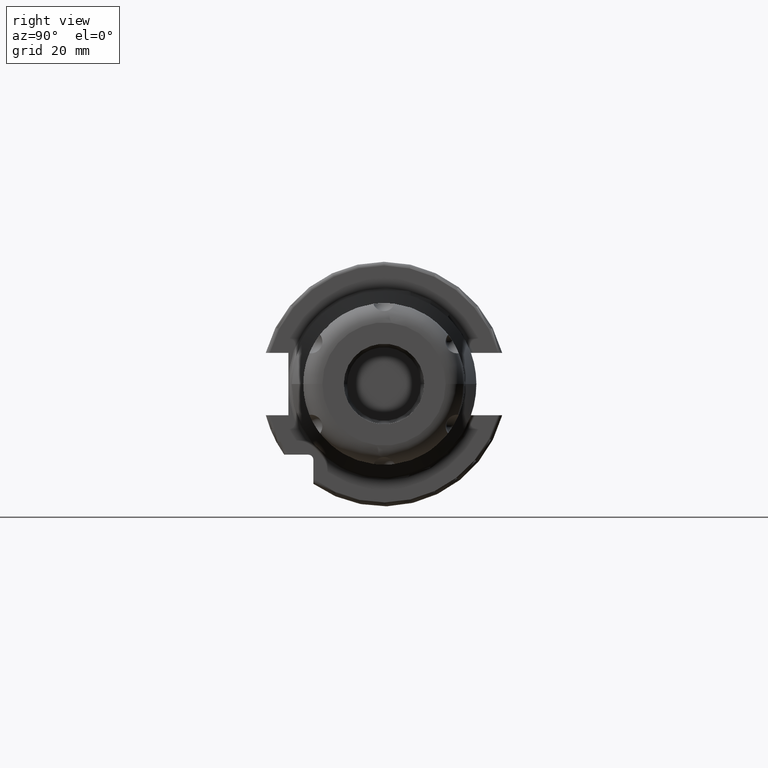
[diagram: clean part render]
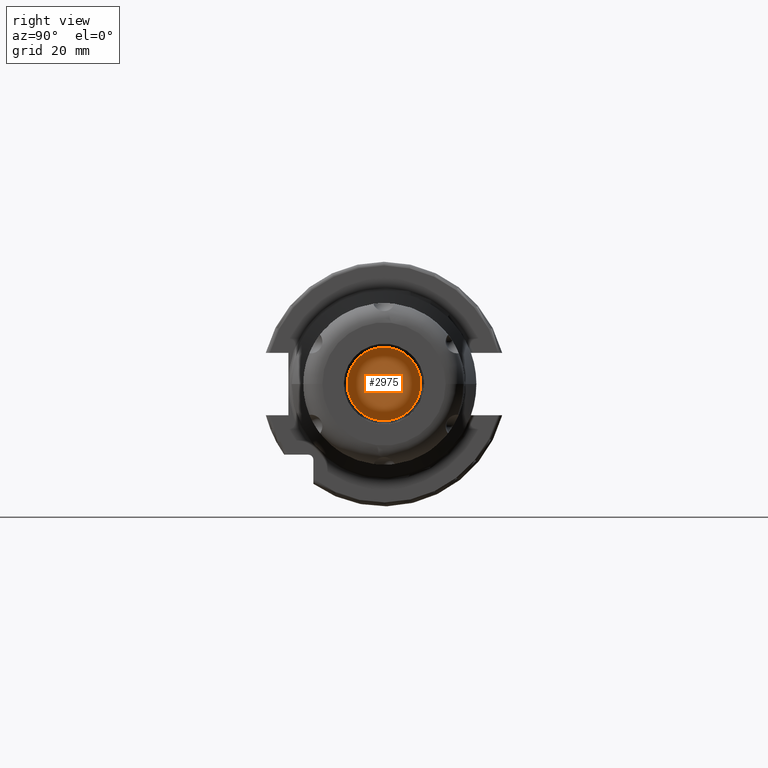
[diagram: same view with one face highlighted and labeled with its STEP entity id]
A machine part, right view. The second image highlights one B-rep face of the part: STEP entity #2975.
In plain terms, the highlighted planar face has unit normal (1, 0, 0).
Its self-contained STEP definition (entity closure, byte-faithful):
#1171=CARTESIAN_POINT('',(6.088E1,0.E0,0.E0));
#1172=DIRECTION('',(-1.E0,0.E0,0.E0));
#1173=DIRECTION('',(0.E0,1.E0,0.E0));
#1174=AXIS2_PLACEMENT_3D('',#1171,#1172,#1173);
#1176=CARTESIAN_POINT('',(6.088E1,0.E0,0.E0));
#1177=DIRECTION('',(1.E0,0.E0,0.E0));
#1178=DIRECTION('',(0.E0,1.E0,0.E0));
#1179=AXIS2_PLACEMENT_3D('',#1176,#1177,#1178);
#1648=CARTESIAN_POINT('',(6.088E1,9.56E0,0.E0));
#1650=VERTEX_POINT('',#1648);
#1652=CARTESIAN_POINT('',(6.088E1,-9.56E0,0.E0));
#1654=VERTEX_POINT('',#1652);
#2966=CARTESIAN_POINT('',(6.088E1,0.E0,0.E0));
#2967=DIRECTION('',(1.E0,0.E0,0.E0));
#2968=DIRECTION('',(0.E0,-1.E0,0.E0));
#2969=AXIS2_PLACEMENT_3D('',#2966,#2967,#2968);
#2970=PLANE('',#2969);
#2971=ORIENTED_EDGE('',*,*,#2948,.T.);
#2972=ORIENTED_EDGE('',*,*,#2959,.F.);
#2973=EDGE_LOOP('',(#2971,#2972));
#2974=FACE_OUTER_BOUND('',#2973,.F.);
#2975=ADVANCED_FACE('',(#2974),#2970,.T.);
#1175=CIRCLE('',#1174,9.56E0);
#1180=CIRCLE('',#1179,9.56E0);
#2948=EDGE_CURVE('',#1650,#1654,#1175,.T.);
#2959=EDGE_CURVE('',#1650,#1654,#1180,.T.);